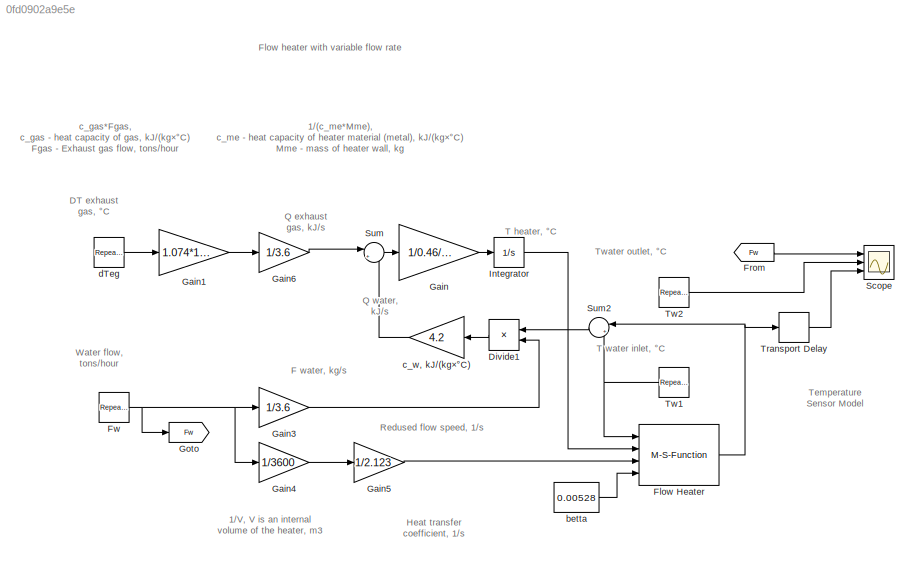
MODEL slx_0fd0902a9e5e
KIND model
CONFIG AbsTol = auto
CONFIG FixedStep = auto
CONFIG MaxStep = 1
CONFIG MinStep = 0.1
CONFIG PreLoadFcn = global N P0d P0L Pout P1 d\nload flowheater_demo.mat
CONFIG RelTol = 1e-3
CONFIG SampleTimeConstraint = Unconstrained
CONFIG Solver = VariableStepAuto
CONFIG SolverMode = Auto
CONFIG SolverName = VariableStepAuto
CONFIG StartTime = 0.0
CONFIG StopTime = 43680
BLOCK [Product] Divide1
  InputSameDT = off
  Inputs = **
  OutDataTypeStr = Inherit: Inherit via internal rule
  Ports = [2, 1]
  RndMeth = Floor
  SaturateOnIntegerOverflow = off
BLOCK [M-S-Function] Flow Heater
  FunctionName = sfFlowHeating
  Ports = [4, 1]
BLOCK [From] From
  GotoTag = Fw
BLOCK [Reference] Fw  REF=simulink/Sources/Repeating
Sequence
  Ports = [0, 1]
  SourceBlock = simulink/Sources/Repeating\nSequence
  SourceType = Repeating table
BLOCK [Gain] Gain
  Gain = 1/0.46/19500
  OutDataTypeStr = Inherit: Inherit via internal rule
  ParamDataTypeStr = Inherit: Inherit via internal rule
  SaturateOnIntegerOverflow = off
BLOCK [Gain] Gain1
  Gain = 1.074*182
  OutDataTypeStr = Inherit: Inherit via internal rule
  ParamDataTypeStr = Inherit: Inherit via internal rule
  SaturateOnIntegerOverflow = off
BLOCK [Gain] Gain3
  Gain = 1/3.6
  OutDataTypeStr = Inherit: Inherit via internal rule
  ParamDataTypeStr = Inherit: Inherit via internal rule
  SaturateOnIntegerOverflow = off
BLOCK [Gain] Gain4
  Gain = 1/3600
  OutDataTypeStr = Inherit: Inherit via internal rule
  ParamDataTypeStr = Inherit: Inherit via internal rule
  SaturateOnIntegerOverflow = off
BLOCK [Gain] Gain5
  Gain = 1/2.123
  OutDataTypeStr = Inherit: Inherit via internal rule
  ParamDataTypeStr = Inherit: Inherit via internal rule
  SaturateOnIntegerOverflow = off
BLOCK [Gain] Gain6
  Gain = 1/3.6
  OutDataTypeStr = Inherit: Inherit via internal rule
  ParamDataTypeStr = Inherit: Inherit via internal rule
  SaturateOnIntegerOverflow = off
BLOCK [Goto] Goto
  GotoTag = Fw
BLOCK [Integrator] Integrator
  InitialCondition = Tw(1,2)
  Ports = [1, 1]
BLOCK [Scope] Scope
  NumInputPorts = 3
  Ports = [3]
  ScopeSpecificationString = Simulink.scopes.TimeScopeBlockCfg('CurrentConfiguration', extmgr.ConfigurationSet(extmgr.Configuration('Core','General UI',true,'FigureColor',[1 1 1]),extmgr.Configuration('Core','Source UI',true),extmgr.Configuration('Sources','WiredSimulink',true),extmgr.Configuration('Visuals','Time Domain',true,'SerializedDisplays',{struct('MinYLimReal','366.17783','MaxYLimReal','752.8917','YLabelReal','','Min...<+2483ch>
BLOCK [Sum] Sum
  IconShape = round
  InputSameDT = off
  Inputs = |+-
  OutDataTypeStr = Inherit: Inherit via internal rule
  Ports = [2, 1]
  SaturateOnIntegerOverflow = off
BLOCK [Sum] Sum2
  IconShape = round
  InputSameDT = off
  Inputs = |+-
  OutDataTypeStr = Inherit: Inherit via internal rule
  Ports = [2, 1]
  SaturateOnIntegerOverflow = off
BLOCK [TransportDelay] Transport Delay
  DelayTime = 90
  Ports = [1, 1]
BLOCK [Reference] Tw1  REF=simulink/Sources/Repeating
Sequence
  Ports = [0, 1]
  SourceBlock = simulink/Sources/Repeating\nSequence
  SourceType = Repeating table
BLOCK [Reference] Tw2  REF=simulink/Sources/Repeating
Sequence
  Ports = [0, 1]
  SourceBlock = simulink/Sources/Repeating\nSequence
  SourceType = Repeating table
BLOCK [Constant] betta
  Value = 0.00528
BLOCK [Gain] c_w, kJ//(kg×°С)
  Gain = 4.2
  OutDataTypeStr = Inherit: Inherit via internal rule
  ParamDataTypeStr = Inherit: Inherit via internal rule
  SaturateOnIntegerOverflow = off
BLOCK [Reference] dTeg  REF=simulink/Sources/Repeating
Sequence
  Ports = [0, 1]
  SourceBlock = simulink/Sources/Repeating\nSequence
  SourceType = Repeating table
ANNOTATION (root): 1/V, V is an internal volume of the heater, m3
ANNOTATION (root): Q exhaust gas, kJ/s
ANNOTATION (root): D T exhaust gas , °С
ANNOTATION (root): 1/(c_me*Mme), c_me - heat capacity of heater material (metal), kJ/(kg × °С) Mme - mass of heater wall, kg
ANNOTATION (root): Heat transfer coefficient, 1/s
ANNOTATION (root): Q water , kJ/s
ANNOTATION (root): c_gas*Fgas, c_gas - heat capacity of gas, kJ/(kg × °С) Fgas - Exhaust gas flow, tons/hour
ANNOTATION (root): Flow heater with variable flow rate
ANNOTATION (root): F water, kg/s
ANNOTATION (root): Redused flow speed, 1/s
ANNOTATION (root): T heater, °С
ANNOTATION (root): T water inlet, °С
ANNOTATION (root): Temperature Sensor Model
ANNOTATION (root): Twater outlet, °С
ANNOTATION (root): Water flow, tons/hour
LINE Divide1:1 -> c_w, kJ//(kg×°С):1
NET Flow Heater:1 -> Sum2:1, Transport Delay:1
LINE From:1 -> Scope:1
NET Fw:1 -> Gain3:1, Gain4:1, Goto:1
LINE Gain1:1 -> Gain6:1
LINE Gain3:1 -> Divide1:2
LINE Gain4:1 -> Gain5:1
LINE Gain5:1 -> Flow Heater:3
LINE Gain6:1 -> Sum:1
LINE Gain:1 -> Integrator:1
LINE Integrator:1 -> Flow Heater:2
LINE Sum2:1 -> Divide1:1
LINE Sum:1 -> Gain:1
LINE Transport Delay:1 -> Scope:3
NET Tw1:1 -> Flow Heater:1, Sum2:2
LINE Tw2:1 -> Scope:2
LINE betta:1 -> Flow Heater:4
LINE c_w, kJ//(kg×°С):1 -> Sum:2
LINE dTeg:1 -> Gain1:1
note: NET lines group one-source signal fan-out (src -> all destinations, sorted); 1:1 wires keep LINE
